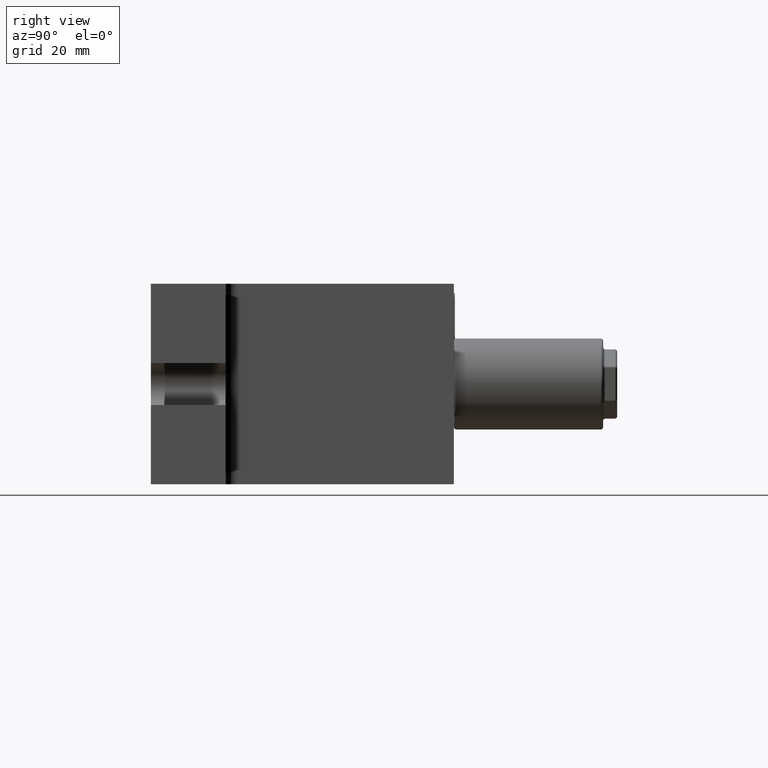
[diagram: clean part render]
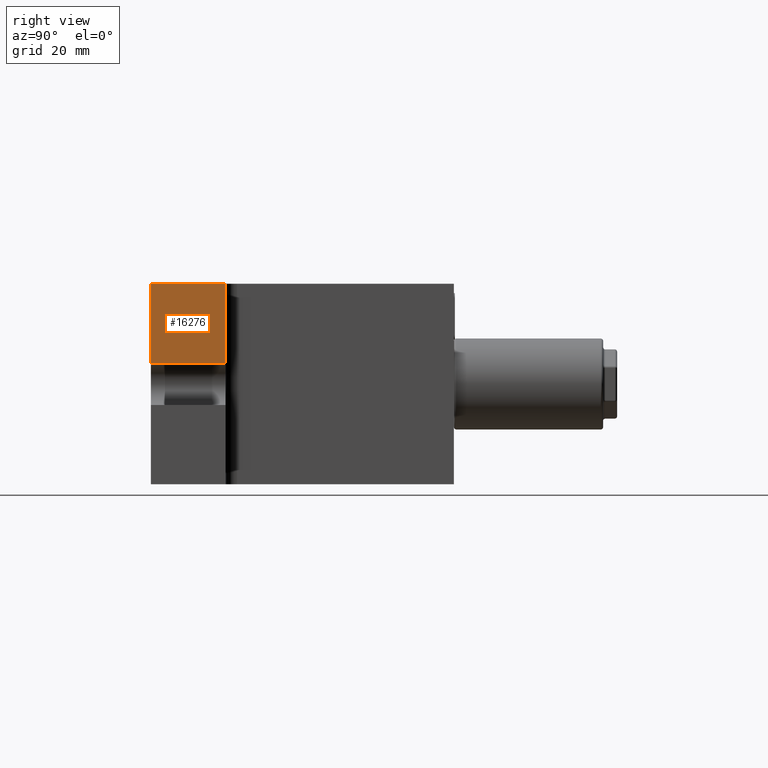
[diagram: same view with one face highlighted and labeled with its STEP entity id]
A machine part, right view. The second image highlights one B-rep face of the part: STEP entity #16276.
In plain terms, the highlighted planar face has unit normal (-1, 0, 0).
Its self-contained STEP definition (entity closure, byte-faithful):
#889 = VECTOR ( 'NONE', #14819, 1000.000000000000000 ) ;
#1145 = EDGE_CURVE ( 'NONE', #4367, #17500, #5991, .T. ) ;
#1183 = VECTOR ( 'NONE', #8130, 1000.000000000000000 ) ;
#1320 = VECTOR ( 'NONE', #5604, 1000.000000000000000 ) ;
#1778 = CARTESIAN_POINT ( 'NONE',  ( 56.50000000000000000, -16.50000000000000000, -21.50000000000000000 ) ) ;
#1849 = ORIENTED_EDGE ( 'NONE', *, *, #15340, .T. ) ;
#2152 = CARTESIAN_POINT ( 'NONE',  ( 56.50000000000000000, -32.50000000000000000, 21.50000000000000000 ) ) ;
#4367 = VERTEX_POINT ( 'NONE', #13364 ) ;
#4404 = ORIENTED_EDGE ( 'NONE', *, *, #9217, .F. ) ;
#4494 = ORIENTED_EDGE ( 'NONE', *, *, #1145, .T. ) ;
#5196 = CARTESIAN_POINT ( 'NONE',  ( 56.50000000000000000, -16.50000000000000000, 21.50000000000000000 ) ) ;
#5277 = LINE ( 'NONE', #1778, #889 ) ;
#5340 = PLANE ( 'NONE',  #15078 ) ;
#5604 = DIRECTION ( 'NONE',  ( 0.0000000000000000000, 0.0000000000000000000, -1.000000000000000000 ) ) ;
#5991 = LINE ( 'NONE', #2152, #1320 ) ;
#7013 = DIRECTION ( 'NONE',  ( 0.0000000000000000000, 0.0000000000000000000, 1.000000000000000000 ) ) ;
#7326 = VECTOR ( 'NONE', #11944, 1000.000000000000000 ) ;
#8130 = DIRECTION ( 'NONE',  ( 0.0000000000000000000, 1.000000000000000000, 0.0000000000000000000 ) ) ;
#8173 = VERTEX_POINT ( 'NONE', #5196 ) ;
#9135 = EDGE_CURVE ( 'NONE', #21357, #8173, #5277, .T. ) ;
#9217 = EDGE_CURVE ( 'NONE', #4367, #8173, #16156, .T. ) ;
#11944 = DIRECTION ( 'NONE',  ( 0.0000000000000000000, 1.000000000000000000, 0.0000000000000000000 ) ) ;
#13364 = CARTESIAN_POINT ( 'NONE',  ( 56.50000000000000000, -32.50000000000000000, 21.50000000000000000 ) ) ;
#13545 = DIRECTION ( 'NONE',  ( -1.000000000000000000, 0.0000000000000000000, 0.0000000000000000000 ) ) ;
#13605 = CARTESIAN_POINT ( 'NONE',  ( 56.50000000000000000, -32.50000000000000000, 21.50000000000000000 ) ) ;
#13856 = FACE_OUTER_BOUND ( 'NONE', #17380, .T. ) ;
#14819 = DIRECTION ( 'NONE',  ( 0.0000000000000000000, 0.0000000000000000000, 1.000000000000000000 ) ) ;
#15078 = AXIS2_PLACEMENT_3D ( 'NONE', #20118, #13545, #7013 ) ;
#15340 = EDGE_CURVE ( 'NONE', #17500, #21357, #18291, .T. ) ;
#16156 = LINE ( 'NONE', #13605, #7326 ) ;
#16264 = CARTESIAN_POINT ( 'NONE',  ( 56.50000000000000000, -32.50000000000000000, 4.500000000000000000 ) ) ;
#16276 = ADVANCED_FACE ( 'NONE', ( #13856 ), #5340, .F. ) ;
#17380 = EDGE_LOOP ( 'NONE', ( #4494, #1849, #20413, #4404 ) ) ;
#17500 = VERTEX_POINT ( 'NONE', #19661 ) ;
#18291 = LINE ( 'NONE', #16264, #1183 ) ;
#18937 = CARTESIAN_POINT ( 'NONE',  ( 56.50000000000000000, -16.50000000000000000, 4.500000000000000000 ) ) ;
#19661 = CARTESIAN_POINT ( 'NONE',  ( 56.50000000000000000, -32.50000000000000000, 4.500000000000000000 ) ) ;
#20118 = CARTESIAN_POINT ( 'NONE',  ( 56.50000000000000000, -32.50000000000000000, 21.50000000000000000 ) ) ;
#20413 = ORIENTED_EDGE ( 'NONE', *, *, #9135, .T. ) ;
#21357 = VERTEX_POINT ( 'NONE', #18937 ) ;